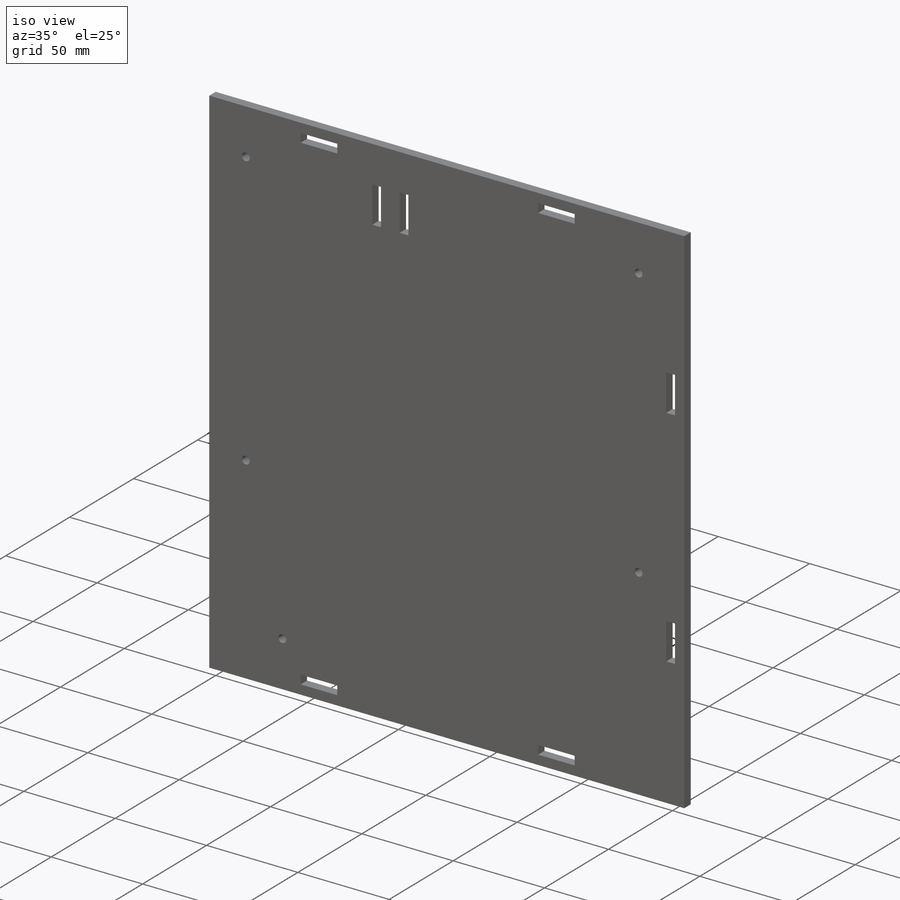
[diagram: iso view]
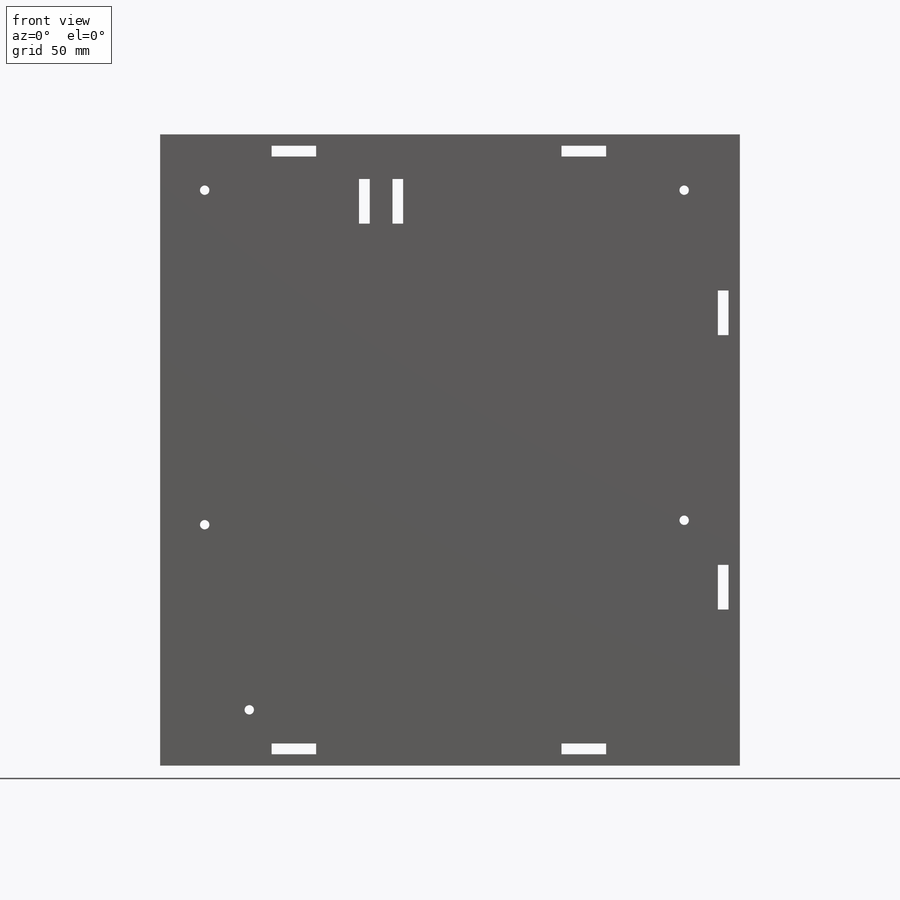
[diagram: front view]
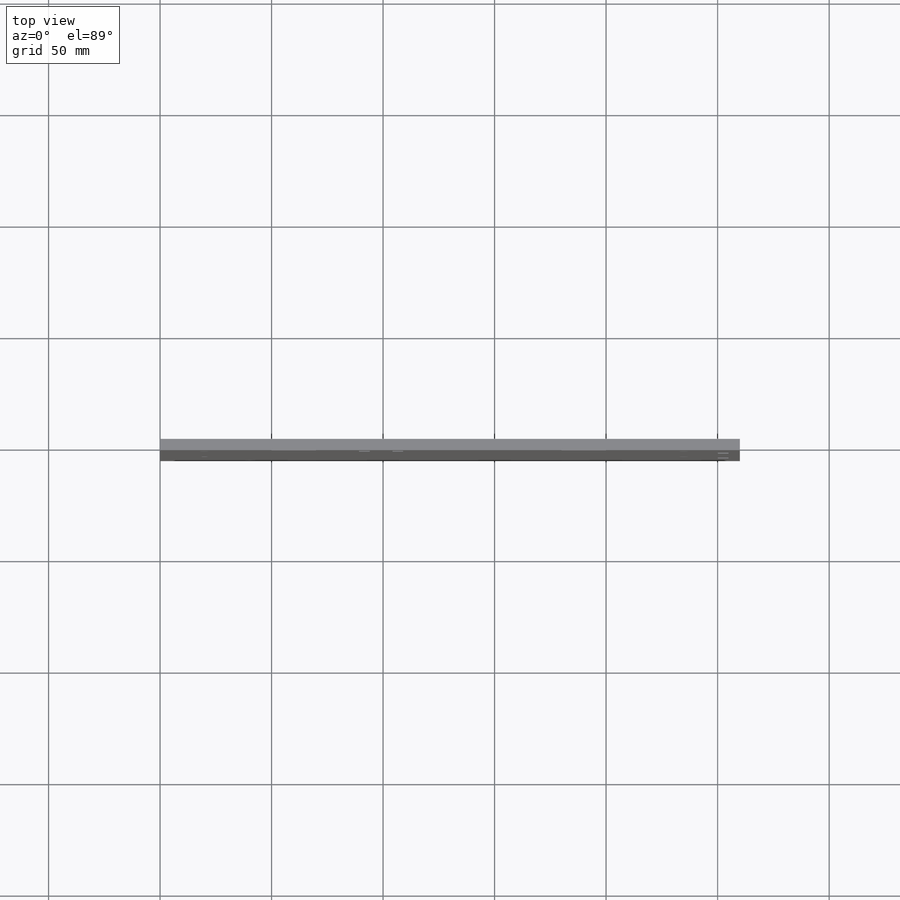
[diagram: top view]
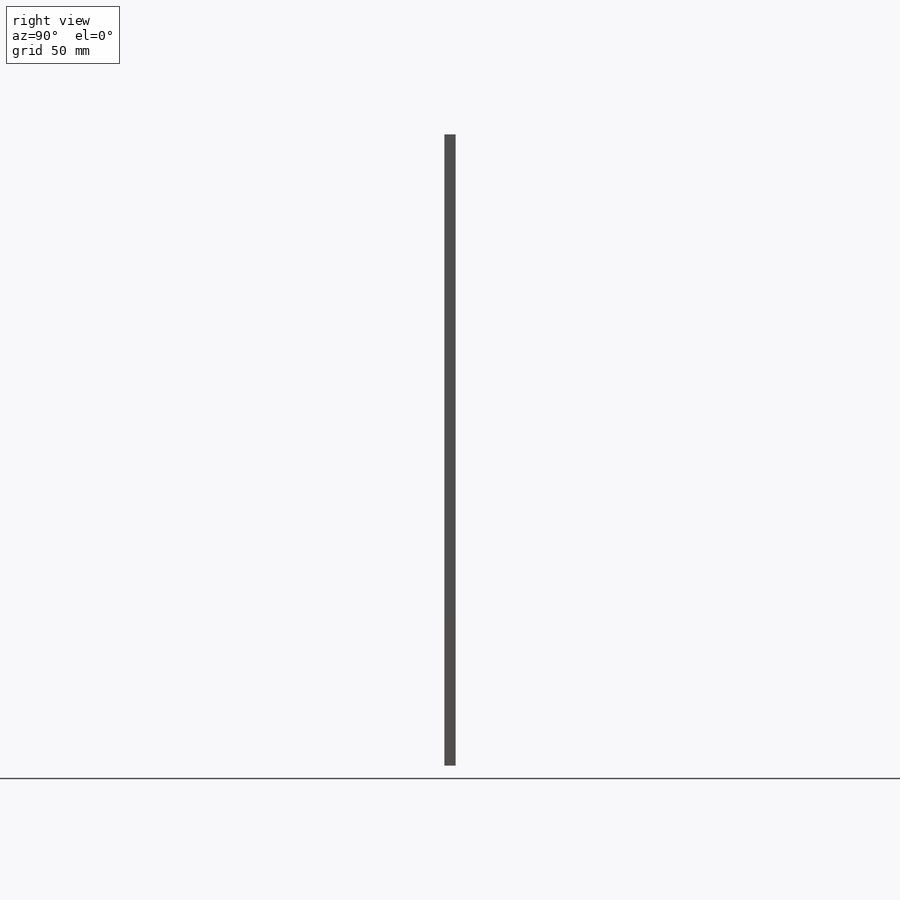
[diagram: right view]
SOLIDWORKS PART (.sldprt)
format: sldprt  version: not decoded by parser v0  size: 288,256 bytes
history: native  units: mm
features: sketch x6, cut_extrude x5, material x1, extrude x1 (+11 scaffold rows collapsed)
feature tree (24):
  scaffold x11  (default folders/planes/origin — collapsed)
  material  "Material <not specified>"
  sketch  "Sketch1"  dims[c1.D1=273.0mm c1.D2=~260.211656mm c2.D1=5.0mm c2.D2=~3.844928mm c2.D3=20.0mm c3.D2=4.8mm c3.D3=5.1mm c3.D4=~4.268696mm c3.D5=20.0mm c4.D4=4.8mm c4.D5=5.1mm c4.D6=20.0mm c4.D7=~4.211246mm c5.D6=4.8mm c5.D7=0.1mm c5.D8=~20.496772mm c5.D9=~4.162627mm c6.D8=4.8mm c6.D9=0.1mm c6.D10=~4.101784mm c6.D11=20.0mm c7.D10=4.8mm c7.D11=0.1mm c7.D12=~3.39288mm c7.D13=20.0mm c8.D12=4.8mm c8.D13=0.1mm]
  extrude  "Boss-Extrude1"  Depth=5mm
  sketch  "Sketch2"  dims[c1.D1=20.0mm c1.D2=~4.258805mm c2.D1=4.8mm c2.D2=0.1mm c2.D3=20.0mm c2.D4=~4.394921mm c3.D3=4.8mm c3.D4=15.0mm]
  cut_extrude  "Cut-Extrude1"  Depth=5mm
  sketch  "Sketch3"  dims[D1=4.2mm D2=4.2mm D3=25.0mm D4=20.0mm D5=25.0mm D6=25.0mm]
  cut_extrude  "Cut-Extrude2"  Depth=5mm
  sketch  "Sketch4"  dims[c1.D1=~7.564836mm c1.D2=~7.564836mm c1.D3=4.2mm c2.D1=25.0mm c2.D2=40.0mm]
  cut_extrude  "Cut-Extrude3"  Depth=5mm
  sketch  "Sketch5"  dims[c1.D1=4.2mm c1.D2=4.2mm c1.D3=4.2mm c2.D2=25.0mm c2.D3=110.0mm]
  cut_extrude  "Cut-Extrude4"  Depth=5mm
  sketch  "Sketch6"  dims[D1=4.2mm]
  cut_extrude  "Cut-Extrude5"  Depth=5mm
decode coverage: 12 of 12 modeling features carry decoded parameters
note: ~ marks probable driven/reference dimensions
note: suppression state not decoded; provenance and decode notes live in map.json
